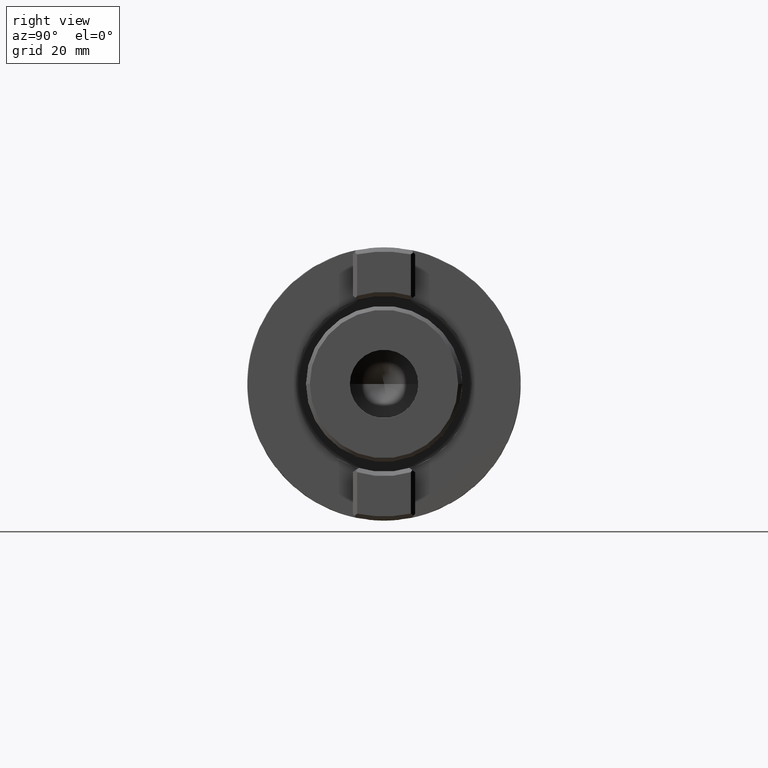
[diagram: clean part render]
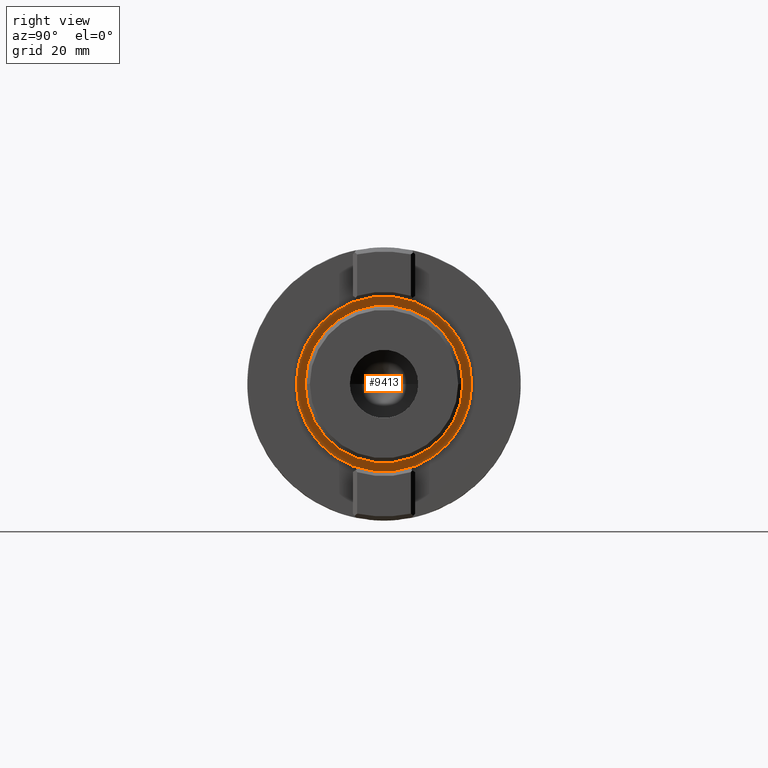
[diagram: same view with one face highlighted and labeled with its STEP entity id]
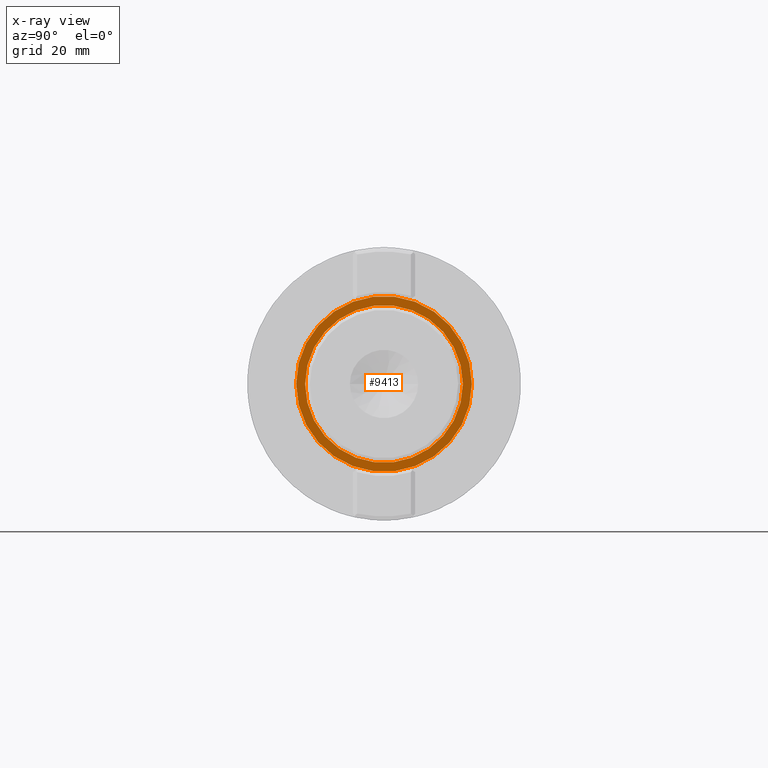
[diagram: x-ray of the same camera — body ghosted, the highlighted face saturated]
A machine part, right view. The second image highlights one B-rep face of the part: STEP entity #9413.
The next image is the same camera in x-ray: the body ghosted, the highlighted face saturated — about 0% of this face is hidden behind the body in this view.
In plain terms, the highlighted planar face has unit normal (1, 0, 0).
Its self-contained STEP definition (entity closure, byte-faithful):
#8059=CARTESIAN_POINT('',(0.E0,1.3E1,0.E0));
#8060=DIRECTION('',(0.E0,1.E0,0.E0));
#8061=DIRECTION('',(-1.E0,0.E0,0.E0));
#8062=AXIS2_PLACEMENT_3D('',#8059,#8060,#8061);
#8064=CARTESIAN_POINT('',(0.E0,1.3E1,0.E0));
#8065=DIRECTION('',(0.E0,1.E0,0.E0));
#8066=DIRECTION('',(1.E0,0.E0,0.E0));
#8067=AXIS2_PLACEMENT_3D('',#8064,#8065,#8066);
#8078=CARTESIAN_POINT('',(0.E0,1.3E1,0.E0));
#8079=DIRECTION('',(0.E0,-1.E0,0.E0));
#8080=DIRECTION('',(1.E0,0.E0,0.E0));
#8081=AXIS2_PLACEMENT_3D('',#8078,#8079,#8080);
#8102=CARTESIAN_POINT('',(0.E0,1.3E1,0.E0));
#8103=DIRECTION('',(0.E0,-1.E0,0.E0));
#8104=DIRECTION('',(-1.E0,0.E0,0.E0));
#8105=AXIS2_PLACEMENT_3D('',#8102,#8103,#8104);
#8428=CARTESIAN_POINT('',(-2.25E1,1.3E1,0.E0));
#8429=CARTESIAN_POINT('',(2.25E1,1.3E1,0.E0));
#8430=VERTEX_POINT('',#8428);
#8431=VERTEX_POINT('',#8429);
#8432=CARTESIAN_POINT('',(2.0195E1,1.3E1,0.E0));
#8433=CARTESIAN_POINT('',(-2.0195E1,1.3E1,0.E0));
#8434=VERTEX_POINT('',#8432);
#8435=VERTEX_POINT('',#8433);
#9398=CARTESIAN_POINT('',(0.E0,1.3E1,0.E0));
#9399=DIRECTION('',(0.E0,1.E0,0.E0));
#9400=DIRECTION('',(-1.E0,0.E0,0.E0));
#9401=AXIS2_PLACEMENT_3D('',#9398,#9399,#9400);
#9402=PLANE('',#9401);
#9403=ORIENTED_EDGE('',*,*,#9103,.F.);
#9404=ORIENTED_EDGE('',*,*,#9332,.F.);
#9405=EDGE_LOOP('',(#9403,#9404));
#9406=FACE_OUTER_BOUND('',#9405,.F.);
#9408=ORIENTED_EDGE('',*,*,#9407,.F.);
#9410=ORIENTED_EDGE('',*,*,#9409,.F.);
#9411=EDGE_LOOP('',(#9408,#9410));
#9412=FACE_BOUND('',#9411,.F.);
#9413=ADVANCED_FACE('',(#9406,#9412),#9402,.T.);
#8063=CIRCLE('',#8062,2.25E1);
#8068=CIRCLE('',#8067,2.25E1);
#8082=CIRCLE('',#8081,2.0195E1);
#8106=CIRCLE('',#8105,2.0195E1);
#9103=EDGE_CURVE('',#8430,#8431,#8063,.T.);
#9332=EDGE_CURVE('',#8431,#8430,#8068,.T.);
#9407=EDGE_CURVE('',#8434,#8435,#8082,.T.);
#9409=EDGE_CURVE('',#8435,#8434,#8106,.T.);